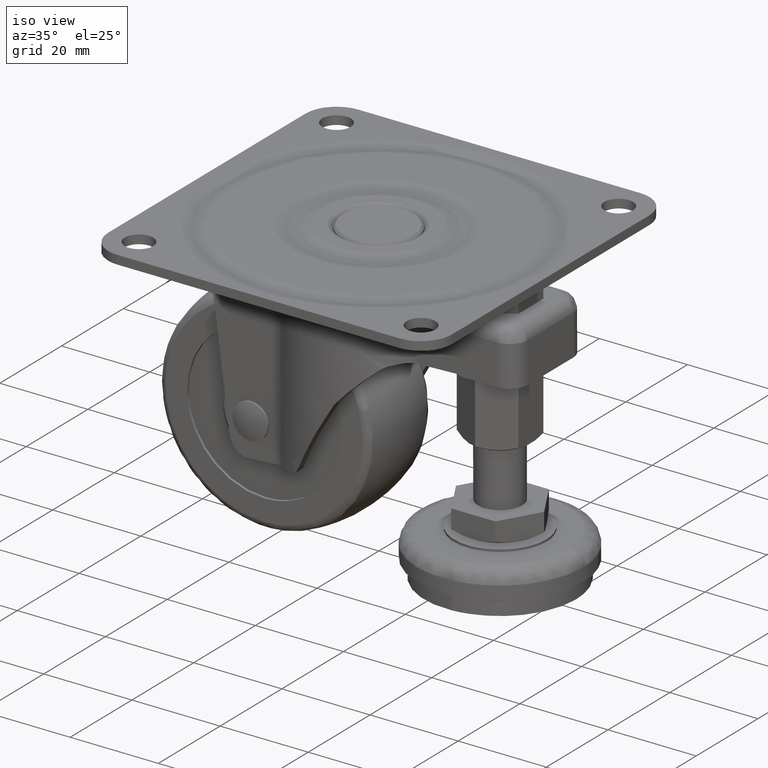
[diagram: clean part render]
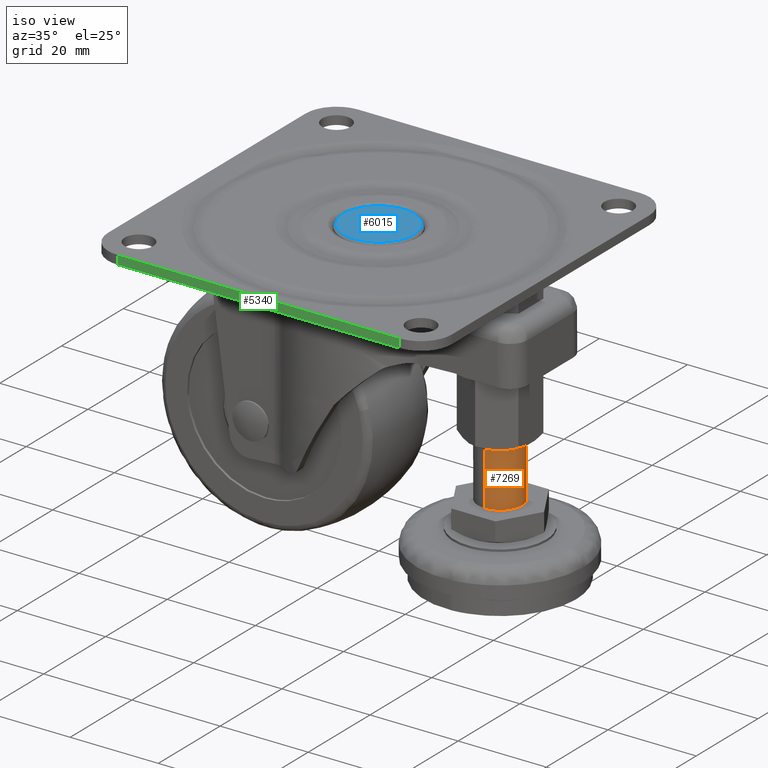
[diagram: same view with three faces highlighted in distinct colors, each labeled with its STEP entity id]
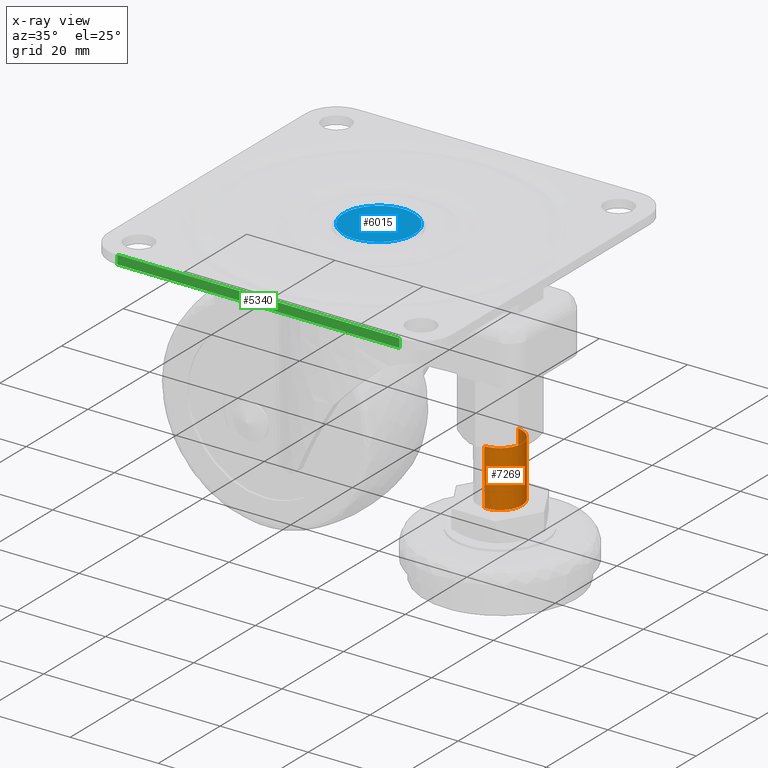
[diagram: x-ray of the same camera — body ghosted, the three highlighted faces saturated]
A machine part, iso view with three faces highlighted in distinct colors.
The next image is the same camera in x-ray (body ghosted, the three faces saturated) — at least one of them is partly hidden behind the body in this view.
Their STEP definitions:

[orange] entity #7269 — the highlighted face is a freeform B-spline surface patch.
#7171=CARTESIAN_POINT('',(28.120662010399151,4.961331069127693,-39.982464124999993));
#7172=CARTESIAN_POINT('',(32.538686152512227,4.408656290666105,-39.982464124999993));
#7173=CARTESIAN_POINT('',(32.499831615320851,-0.043632677491869,-39.982464124999993));
#7174=CARTESIAN_POINT('',(32.456198937828972,-5.043442292812725,-39.982464124999993));
#7175=CARTESIAN_POINT('',(27.456389322508130,-4.999809615320855,-39.982464124999993));
#7176=CARTESIAN_POINT('',(28.120662010399151,4.961331069127693,-53.325438396874993));
#7177=CARTESIAN_POINT('',(32.538686152512227,4.408656290666105,-53.325438396875001));
#7178=CARTESIAN_POINT('',(32.499831615320851,-0.043632677491869,-53.325438396875008));
#7179=CARTESIAN_POINT('',(32.456198937828972,-5.043442292812725,-53.325438396875015));
#7180=CARTESIAN_POINT('',(27.456389322508130,-4.999809615320855,-53.325438396875008));
#7188=(BOUNDED_SURFACE()B_SPLINE_SURFACE(2,1,((#7171,#7176),(#7172,#7177),(#7173,#7178),(#7174,#7179),(#7175,#7180)),.UNSPECIFIED.,.F.,.F.,.U.)B_SPLINE_SURFACE_WITH_KNOTS((3,2,3),(2,2),(0.0,7.621529547664949,15.905800795126851),(0.0,13.342974271875020),.UNSPECIFIED.)GEOMETRIC_REPRESENTATION_ITEM()RATIONAL_B_SPLINE_SURFACE(((0.956886118190660,0.956886118190660),(0.730538238691624,0.730538238691624),(1.0,1.0),(0.707106781186548,0.707106781186548),(1.0,1.0)))REPRESENTATION_ITEM('')SURFACE());
#7189=CARTESIAN_POINT('',(32.500021999999987,0.0,-53.0));
#7190=VERTEX_POINT('',#7189);
#7191=CARTESIAN_POINT('',(28.120662010469491,4.961331069118893,-53.0));
#7192=VERTEX_POINT('',#7191);
#7193=CARTESIAN_POINT('',(32.500021999999987,0.0,-53.0));
#7194=CARTESIAN_POINT('',(32.500022000000001,4.413493000625013,-53.000000000000021));
#7195=CARTESIAN_POINT('',(28.120662010469488,4.961331069118893,-53.0));
#7203=(BOUNDED_CURVE()B_SPLINE_CURVE(2,(#7193,#7194,#7195),.UNSPECIFIED.,.F.,.U.)B_SPLINE_CURVE_WITH_KNOTS((3,3),(0.0,0.228526071024516),.UNSPECIFIED.)CURVE()GEOMETRIC_REPRESENTATION_ITEM()RATIONAL_B_SPLINE_CURVE((1.0,0.732265053899351,0.954005430265438))REPRESENTATION_ITEM(''));
#7204=EDGE_CURVE('',#7190,#7192,#7203,.T.);
#7205=ORIENTED_EDGE('',*,*,#7204,.T.);
#7206=CARTESIAN_POINT('',(28.120662010550809,4.961331069108720,-40.299965000000000));
#7207=VERTEX_POINT('',#7206);
#7208=CARTESIAN_POINT('',(28.120662010550809,4.961331069108720,-40.299965000000000));
#7209=CARTESIAN_POINT('',(28.120662010469491,4.961331069118893,-53.0));
#7210=QUASI_UNIFORM_CURVE('',1,(#7208,#7209),.UNSPECIFIED.,.F.,.U.);
#7211=EDGE_CURVE('',#7207,#7192,#7210,.T.);
#7212=ORIENTED_EDGE('',*,*,#7211,.F.);
#7213=CARTESIAN_POINT('',(32.500021999999987,0.0,-40.299965000000000));
#7214=VERTEX_POINT('',#7213);
#7215=CARTESIAN_POINT('',(28.120662010550816,4.961331069108720,-40.299965000000000));
#7216=CARTESIAN_POINT('',(32.500021999999987,4.413493000479201,-40.299965000000000));
#7217=CARTESIAN_POINT('',(32.500021999999987,0.0,-40.299965000000000));
#7225=(BOUNDED_CURVE()B_SPLINE_CURVE(2,(#7215,#7216,#7217),.UNSPECIFIED.,.F.,.U.)B_SPLINE_CURVE_WITH_KNOTS((3,3),(0.271473928981012,0.500000000000000),.UNSPECIFIED.)CURVE()GEOMETRIC_REPRESENTATION_ITEM()RATIONAL_B_SPLINE_CURVE((0.954005430254709,0.732265053905828,1.0))REPRESENTATION_ITEM(''));
#7226=EDGE_CURVE('',#7207,#7214,#7225,.T.);
#7227=ORIENTED_EDGE('',*,*,#7226,.T.);
#7228=CARTESIAN_POINT('',(27.456389322253450,-4.999809615318632,-40.299965000000000));
#7229=VERTEX_POINT('',#7228);
#7230=CARTESIAN_POINT('',(32.500021999999987,0.0,-40.299965000000000));
#7231=CARTESIAN_POINT('',(32.500021999999994,-5.000000000000001,-40.299965000000007));
#7232=CARTESIAN_POINT('',(27.500022000000001,-5.0,-40.299965000000000));
#7233=CARTESIAN_POINT('',(27.478205245641785,-5.0,-40.299965000000000));
#7234=CARTESIAN_POINT('',(27.456389322253450,-4.999809615318632,-40.299965000000007));
#7242=(BOUNDED_CURVE()B_SPLINE_CURVE(2,(#7230,#7231,#7232,#7233,#7234),.UNSPECIFIED.,.F.,.U.)B_SPLINE_CURVE_WITH_KNOTS((3,2,3),(0.500000000000000,0.750000000000000,0.751539894352932),.UNSPECIFIED.)CURVE()GEOMETRIC_REPRESENTATION_ITEM()RATIONAL_B_SPLINE_CURVE((1.0,0.707106781186548,1.0,0.998195901545348,0.996414028058876))REPRESENTATION_ITEM(''));
#7243=EDGE_CURVE('',#7214,#7229,#7242,.T.);
#7244=ORIENTED_EDGE('',*,*,#7243,.T.);
#7245=CARTESIAN_POINT('',(27.456389322274891,-4.999809615318821,-53.0));
#7246=VERTEX_POINT('',#7245);
#7247=CARTESIAN_POINT('',(27.456389322253450,-4.999809615318632,-40.299965000000000));
#7248=CARTESIAN_POINT('',(27.456389322274891,-4.999809615318821,-53.0));
#7249=QUASI_UNIFORM_CURVE('',1,(#7247,#7248),.UNSPECIFIED.,.F.,.U.);
#7250=EDGE_CURVE('',#7229,#7246,#7249,.T.);
#7251=ORIENTED_EDGE('',*,*,#7250,.T.);
#7252=CARTESIAN_POINT('',(27.456389322274884,-4.999809615318821,-53.0));
#7253=CARTESIAN_POINT('',(27.478205245663236,-5.000000000000002,-53.0));
#7254=CARTESIAN_POINT('',(27.500022000000001,-5.0,-53.0));
#7255=CARTESIAN_POINT('',(32.500021999999994,-5.000000000000001,-53.0));
#7256=CARTESIAN_POINT('',(32.500021999999987,0.0,-53.0));
#7264=(BOUNDED_CURVE()B_SPLINE_CURVE(2,(#7252,#7253,#7254,#7255,#7256),.UNSPECIFIED.,.F.,.U.)B_SPLINE_CURVE_WITH_KNOTS((3,2,3),(0.748460105648579,0.750000000000000,1.0),.UNSPECIFIED.)CURVE()GEOMETRIC_REPRESENTATION_ITEM()RATIONAL_B_SPLINE_CURVE((0.996414028062373,0.998195901547118,1.0,0.707106781186548,1.0))REPRESENTATION_ITEM(''));
#7265=EDGE_CURVE('',#7246,#7190,#7264,.T.);
#7266=ORIENTED_EDGE('',*,*,#7265,.T.);
#7267=EDGE_LOOP('',(#7205,#7212,#7227,#7244,#7251,#7266));
#7268=FACE_OUTER_BOUND('',#7267,.T.);
#7269=ADVANCED_FACE('',(#7268),#7188,.T.);

[blue] entity #6015 — the highlighted face is a freeform B-spline surface patch.
#5699=CARTESIAN_POINT('',(0.527218958001460,7.982608606892365,-9.000995000031766));
#5700=VERTEX_POINT('',#5699);
#5706=CARTESIAN_POINT('',(8.0,0.0,-9.000995000000000));
#5707=VERTEX_POINT('',#5706);
#5708=CARTESIAN_POINT('',(8.0,0.0,-9.000995000000000));
#5709=CARTESIAN_POINT('',(8.0,7.489061693794731,-9.000995000000000));
#5710=CARTESIAN_POINT('',(0.527218958001460,7.982608606892365,-9.000995000031766));
#5718=(BOUNDED_CURVE()B_SPLINE_CURVE(2,(#5708,#5709,#5710),.UNSPECIFIED.,.F.,.U.)B_SPLINE_CURVE_WITH_KNOTS((3,3),(0.500000000000000,0.738494527062831),.UNSPECIFIED.)CURVE()GEOMETRIC_REPRESENTATION_ITEM()RATIONAL_B_SPLINE_CURVE((1.0,0.720586281196701,0.974281704160280))REPRESENTATION_ITEM(''));
#5719=EDGE_CURVE('',#5707,#5700,#5718,.T.);
#5721=CARTESIAN_POINT('',(-0.069812284311371,-7.999695384554784,-9.000995000044245));
#5722=VERTEX_POINT('',#5721);
#5723=CARTESIAN_POINT('',(-0.069812284311371,-7.999695384554784,-9.000995000044245));
#5724=CARTESIAN_POINT('',(-0.034906806889624,-8.000000000000002,-9.000995000000001));
#5725=CARTESIAN_POINT('',(0.0,-8.0,-9.000995000000000));
#5726=CARTESIAN_POINT('',(8.0,-8.0,-9.000995000000000));
#5727=CARTESIAN_POINT('',(8.0,0.0,-9.000995000000000));
#5735=(BOUNDED_CURVE()B_SPLINE_CURVE(2,(#5723,#5724,#5725,#5726,#5727),.UNSPECIFIED.,.F.,.U.)B_SPLINE_CURVE_WITH_KNOTS((3,2,3),(0.248460105650745,0.250000000000000,0.500000000000000),.UNSPECIFIED.)CURVE()GEOMETRIC_REPRESENTATION_ITEM()RATIONAL_B_SPLINE_CURVE((0.996414028067386,0.998195901549656,1.0,0.707106781186548,1.0))REPRESENTATION_ITEM(''));
#5736=EDGE_CURVE('',#5722,#5707,#5735,.T.);
#5846=CARTESIAN_POINT('',(-8.0,0.0,-9.000995000000000));
#5847=VERTEX_POINT('',#5846);
#5848=CARTESIAN_POINT('',(-8.0,0.0,-9.000995000000000));
#5849=CARTESIAN_POINT('',(-8.0,-7.930489684117424,-9.000995000000001));
#5850=CARTESIAN_POINT('',(-0.069812284311371,-7.999695384554784,-9.000995000044245));
#5858=(BOUNDED_CURVE()B_SPLINE_CURVE(2,(#5848,#5849,#5850),.UNSPECIFIED.,.F.,.U.)B_SPLINE_CURVE_WITH_KNOTS((3,3),(0.0,0.248460105650745),.UNSPECIFIED.)CURVE()GEOMETRIC_REPRESENTATION_ITEM()RATIONAL_B_SPLINE_CURVE((1.0,0.708910879636891,0.996414028067386))REPRESENTATION_ITEM(''));
#5859=EDGE_CURVE('',#5847,#5722,#5858,.T.);
#5861=CARTESIAN_POINT('',(0.527218958001460,7.982608606892365,-9.000995000031766));
#5862=CARTESIAN_POINT('',(0.263896324415818,8.0,-9.000995000000000));
#5863=CARTESIAN_POINT('',(0.0,8.0,-9.000995000000000));
#5864=CARTESIAN_POINT('',(-8.0,8.0,-9.000995000000000));
#5865=CARTESIAN_POINT('',(-8.0,0.0,-9.000995000000000));
#5873=(BOUNDED_CURVE()B_SPLINE_CURVE(2,(#5861,#5862,#5863,#5864,#5865),.UNSPECIFIED.,.F.,.U.)B_SPLINE_CURVE_WITH_KNOTS((3,2,3),(0.738494527062831,0.750000000000000,1.0),.UNSPECIFIED.)CURVE()GEOMETRIC_REPRESENTATION_ITEM()RATIONAL_B_SPLINE_CURVE((0.974281704160279,0.986520499989846,1.0,0.707106781186548,1.0))REPRESENTATION_ITEM(''));
#5874=EDGE_CURVE('',#5700,#5847,#5873,.T.);
#6004=CARTESIAN_POINT('',(8.799199968988896,-8.798854098222055,-9.000995000000000));
#6005=CARTESIAN_POINT('',(-8.799200398142338,-8.798854098222055,-9.000995000000000));
#6006=CARTESIAN_POINT('',(8.799199968988896,8.798639664552011,-9.000995000000000));
#6007=CARTESIAN_POINT('',(-8.799200398142338,8.798639664552011,-9.000995000000000));
#6008=B_SPLINE_SURFACE_WITH_KNOTS('',1,1,((#6004,#6006),(#6005,#6007)),.UNSPECIFIED.,.F.,.F.,.U.,(2,2),(2,2),(0.0,17.598400367131230),(0.0,17.597493762774061),.UNSPECIFIED.);
#6009=ORIENTED_EDGE('',*,*,#5859,.T.);
#6010=ORIENTED_EDGE('',*,*,#5736,.T.);
#6011=ORIENTED_EDGE('',*,*,#5719,.T.);
#6012=ORIENTED_EDGE('',*,*,#5874,.T.);
#6013=EDGE_LOOP('',(#6009,#6010,#6011,#6012));
#6014=FACE_OUTER_BOUND('',#6013,.T.);
#6015=ADVANCED_FACE('',(#6014),#6008,.F.);

[green] entity #5340 — the highlighted face is a freeform B-spline surface patch.
#5274=CARTESIAN_POINT('',(32.0,-39.0,0.0));
#5275=VERTEX_POINT('',#5274);
#5289=CARTESIAN_POINT('',(32.0,-39.0,-2.0));
#5290=VERTEX_POINT('',#5289);
#5291=CARTESIAN_POINT('',(32.0,-39.0,-2.0));
#5292=CARTESIAN_POINT('',(32.0,-39.0,0.0));
#5293=QUASI_UNIFORM_CURVE('',1,(#5291,#5292),.UNSPECIFIED.,.F.,.U.);
#5294=EDGE_CURVE('',#5290,#5275,#5293,.T.);
#5313=CARTESIAN_POINT('',(-35.196799875955577,-39.0,-2.099899996123612));
#5314=CARTESIAN_POINT('',(35.196801592569351,-39.0,-2.099899996123612));
#5315=CARTESIAN_POINT('',(-35.196799875955577,-39.0,0.099900049767792));
#5316=CARTESIAN_POINT('',(35.196801592569351,-39.0,0.099900049767792));
#5317=B_SPLINE_SURFACE_WITH_KNOTS('',1,1,((#5313,#5315),(#5314,#5316)),.UNSPECIFIED.,.F.,.F.,.U.,(2,2),(2,2),(0.0,70.393601468524935),(0.0,2.199800045891404),.UNSPECIFIED.);
#5318=CARTESIAN_POINT('',(-32.0,-39.0,0.0));
#5319=VERTEX_POINT('',#5318);
#5320=CARTESIAN_POINT('',(-32.0,-39.0,0.0));
#5321=CARTESIAN_POINT('',(32.0,-39.0,0.0));
#5322=QUASI_UNIFORM_CURVE('',1,(#5320,#5321),.UNSPECIFIED.,.F.,.U.);
#5323=EDGE_CURVE('',#5319,#5275,#5322,.T.);
#5324=ORIENTED_EDGE('',*,*,#5323,.F.);
#5325=CARTESIAN_POINT('',(-32.0,-39.0,-2.0));
#5326=VERTEX_POINT('',#5325);
#5327=CARTESIAN_POINT('',(-32.0,-39.0,-2.0));
#5328=CARTESIAN_POINT('',(-32.0,-39.0,0.0));
#5329=QUASI_UNIFORM_CURVE('',1,(#5327,#5328),.UNSPECIFIED.,.F.,.U.);
#5330=EDGE_CURVE('',#5326,#5319,#5329,.T.);
#5331=ORIENTED_EDGE('',*,*,#5330,.F.);
#5332=CARTESIAN_POINT('',(-32.0,-39.0,-2.0));
#5333=CARTESIAN_POINT('',(32.0,-39.0,-2.0));
#5334=QUASI_UNIFORM_CURVE('',1,(#5332,#5333),.UNSPECIFIED.,.F.,.U.);
#5335=EDGE_CURVE('',#5326,#5290,#5334,.T.);
#5336=ORIENTED_EDGE('',*,*,#5335,.T.);
#5337=ORIENTED_EDGE('',*,*,#5294,.T.);
#5338=EDGE_LOOP('',(#5324,#5331,#5336,#5337));
#5339=FACE_OUTER_BOUND('',#5338,.T.);
#5340=ADVANCED_FACE('',(#5339),#5317,.T.);